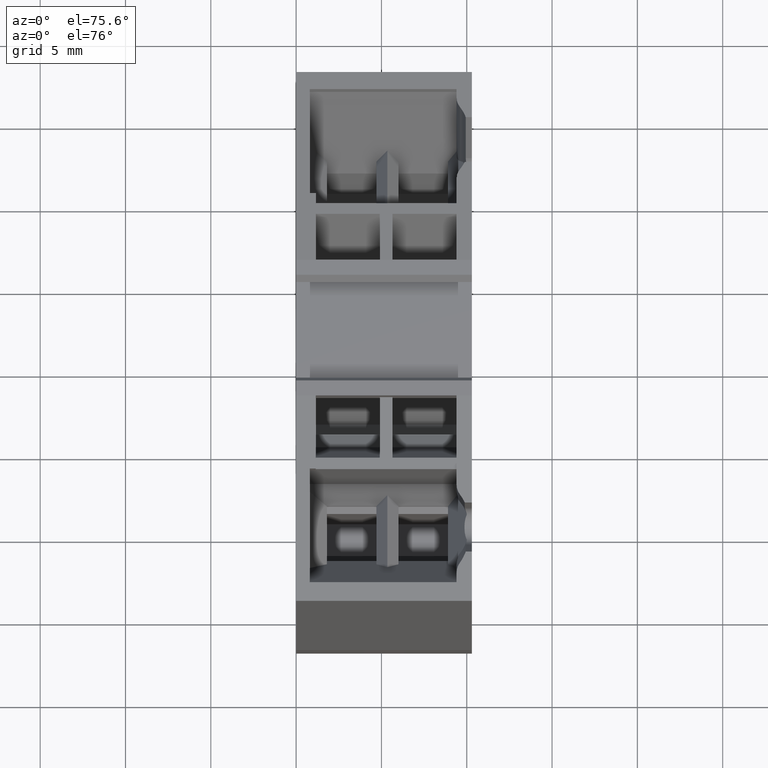
[diagram: clean part render]
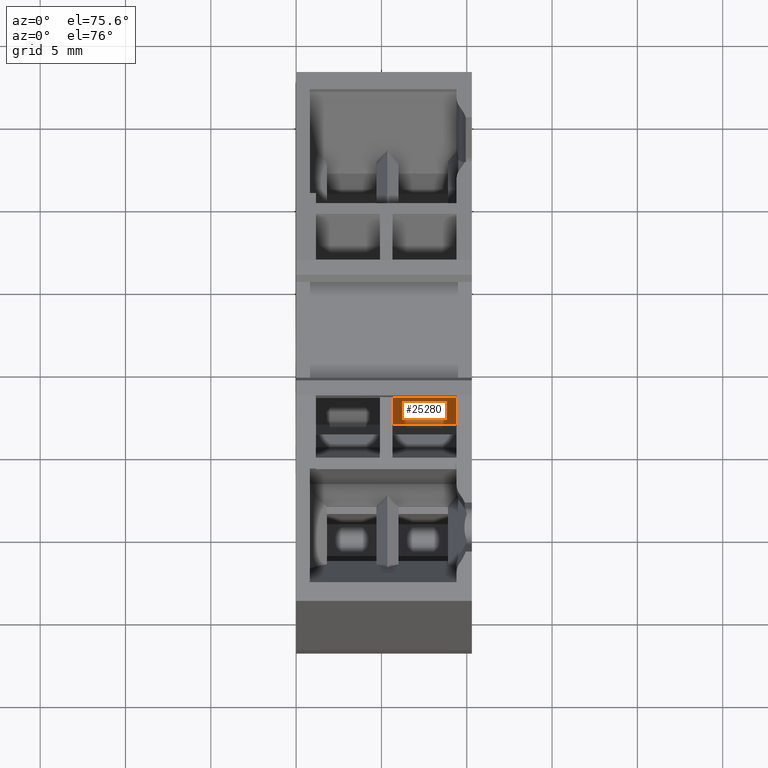
[diagram: same view with one face highlighted and labeled with its STEP entity id]
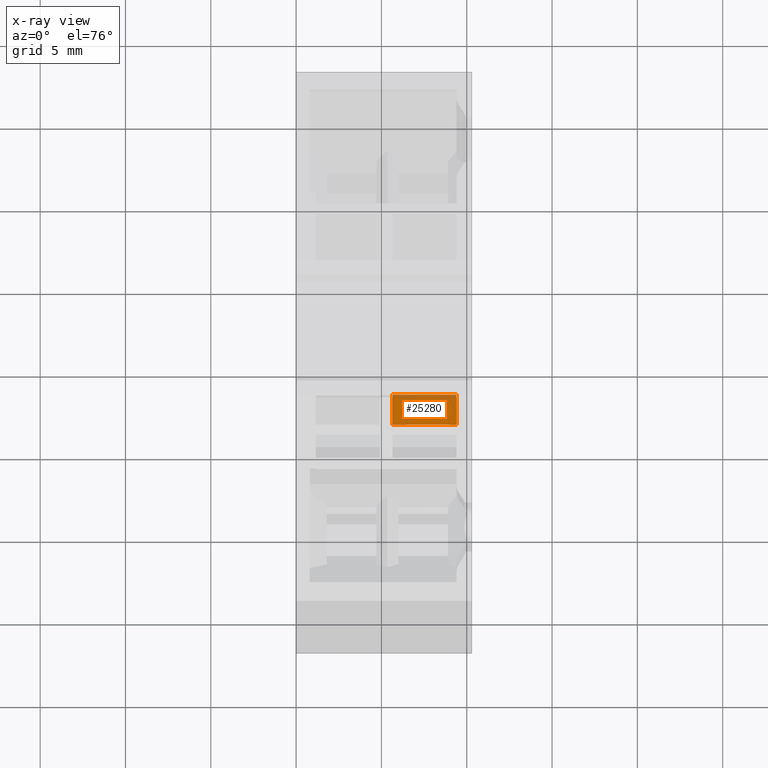
[diagram: x-ray of the same camera — body ghosted, the highlighted face saturated]
A machine part, auxiliary view. The second image highlights one B-rep face of the part: STEP entity #25280.
The next image is the same camera in x-ray: the body ghosted, the highlighted face saturated — about 12% of this face is hidden behind the body in this view.
In plain terms, the highlighted planar face has unit normal (0, -0.9659, 0.2588).
Its self-contained STEP definition (entity closure, byte-faithful):
#18900=CARTESIAN_POINT('',(1.101612168175,114.727956210144,
65.3499999999999));
#18910=DIRECTION('',(-8.54723341357633E-16,9.76953249612862E-15,1.));
#18920=VECTOR('',#18910,1.);
#18930=LINE('',#18900,#18920);
#19810=CARTESIAN_POINT('',(4.20124990723356,116.51753289318,
55.9499999999997));
#19820=VERTEX_POINT('',#19810);
#19850=CARTESIAN_POINT('',(69.4828380688745,154.207875391429,
55.9499999999994));
#19860=DIRECTION('',(-0.866025403784439,-0.5,4.14455412124108E-15));
#19870=VECTOR('',#19860,1.);
#19880=LINE('',#19850,#19870);
#19890=CARTESIAN_POINT('',(1.10161216817501,114.727956210144,
55.9499999999997));
#19900=VERTEX_POINT('',#19890);
#19910=EDGE_CURVE('',#19820,#19900,#19880,.T.);
#24660=CARTESIAN_POINT('',(1.101612168175,114.727956210144,
59.6999999999999));
#24670=VERTEX_POINT('',#24660);
#24700=CARTESIAN_POINT('',(69.4828380688744,154.207875391429,
59.6999999999997));
#24710=DIRECTION('',(0.866025403784439,0.5,-2.58126853225349E-15));
#24720=VECTOR('',#24710,1.);
#24730=LINE('',#24700,#24720);
#24740=CARTESIAN_POINT('',(4.20124990723355,116.51753289318,
59.6999999999999));
#24750=VERTEX_POINT('',#24740);
#24760=EDGE_CURVE('',#24670,#24750,#24730,.T.);
#25110=CARTESIAN_POINT('',(1.10161216817501,114.727956210144,
55.9499999999997));
#25120=DIRECTION('',(-0.5,0.866025403784439,-8.8880249954238E-15));
#25130=DIRECTION('',(-0.866025403784439,-0.5,4.14455412124108E-15));
#25140=AXIS2_PLACEMENT_3D('',#25110,#25120,#25130);
#25150=PLANE('',#25140);
#25160=ORIENTED_EDGE('',*,*,#24760,.T.);
#25170=EDGE_CURVE('',#19900,#24670,#18930,.T.);
#25180=ORIENTED_EDGE('',*,*,#25170,.T.);
#25190=ORIENTED_EDGE('',*,*,#19910,.T.);
#25200=CARTESIAN_POINT('',(4.20124990723356,116.51753289318,
65.3499999999999));
#25210=DIRECTION('',(-8.5472334135763E-16,9.76953249612862E-15,1.));
#25220=VECTOR('',#25210,1.);
#25230=LINE('',#25200,#25220);
#25240=EDGE_CURVE('',#19820,#24750,#25230,.T.);
#25250=ORIENTED_EDGE('',*,*,#25240,.F.);
#25260=EDGE_LOOP('',(#25250,#25190,#25180,#25160));
#25270=FACE_OUTER_BOUND('',#25260,.T.);
#25280=ADVANCED_FACE('',(#25270),#25150,.T.);